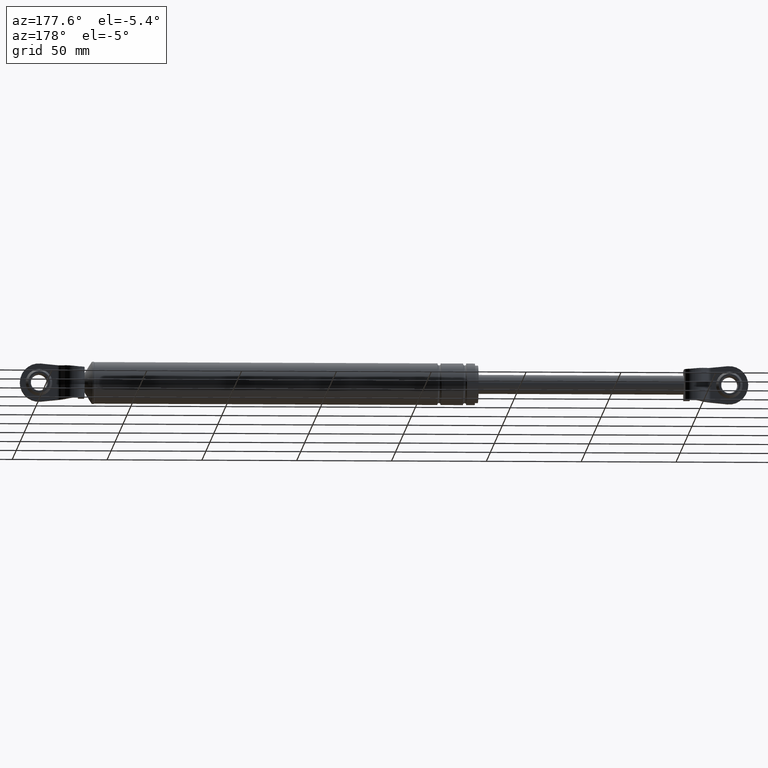
[diagram: clean part render]
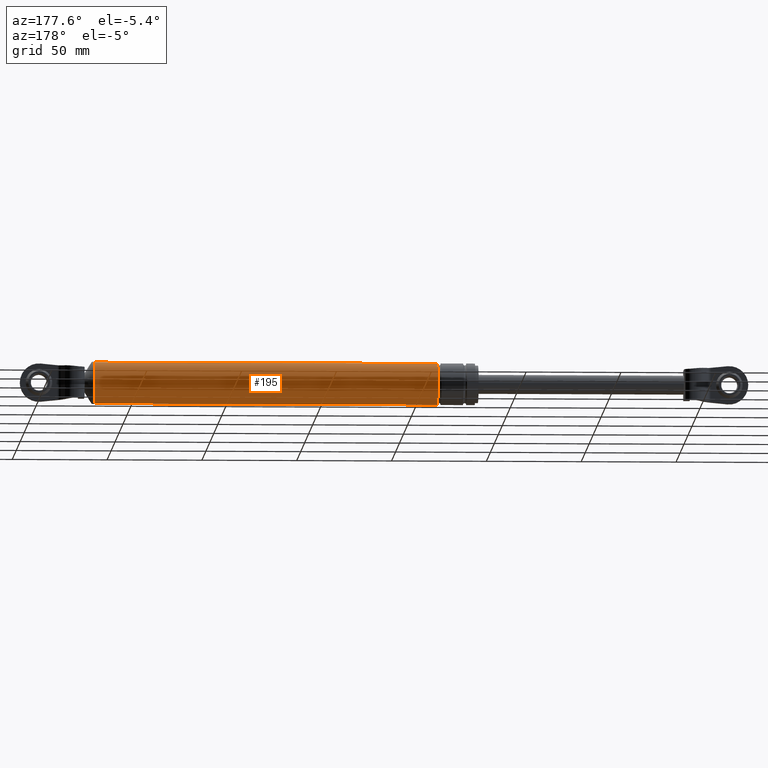
[diagram: same view with one face highlighted and labeled with its STEP entity id]
A machine part, auxiliary view. The second image highlights one B-rep face of the part: STEP entity #195.
In plain terms, the highlighted cylindrical surface (edge-blend (fillet) strip) has radius 11 mm, axis along (1, 0, 0).
Its self-contained STEP definition (entity closure, byte-faithful):
#195=ADVANCED_FACE('',(#1105),#1104,.T.);
#1104=CYLINDRICAL_SURFACE('',#2415,1.10000000000E+001);
#1105=FACE_OUTER_BOUND('',#2416,.T.);
#2412=CARTESIAN_POINT('',(0.00000000000E+000,0.00000000000E+000,1.93496945170E+002));
#2413=DIRECTION('',(1.00000000000E+000,-0.00000000000E+000,-0.00000000000E+000));
#2414=DIRECTION('',(-0.00000000000E+000,-0.00000000000E+000,-1.00000000000E+000));
#2415=AXIS2_PLACEMENT_3D('',#2412,#2413,#2414);
#2416=EDGE_LOOP('',(#3202,#3203,#3204,#3205));
#3202=ORIENTED_EDGE('',*,*,#3737,.T.);
#3203=ORIENTED_EDGE('',*,*,#3748,.F.);
#3204=ORIENTED_EDGE('',*,*,#3636,.F.);
#3205=ORIENTED_EDGE('',*,*,#3749,.T.);
#3636=EDGE_CURVE('',#4518,#4519,#4520,.T.);
#3737=EDGE_CURVE('',#5170,#5177,#5190,.T.);
#3748=EDGE_CURVE('',#4519,#5177,#5256,.T.);
#3749=EDGE_CURVE('',#4518,#5170,#5262,.T.);
#4518=VERTEX_POINT('',#6807);
#4519=VERTEX_POINT('',#6808);
#4520=CIRCLE('',#6812,1.10000000000E+001);
#5170=VERTEX_POINT('',#7192);
#5177=VERTEX_POINT('',#7195);
#5190=CIRCLE('',#7205,1.10000000000E+001);
#5256=(BOUNDED_CURVE() B_SPLINE_CURVE(1,(#7238,#7239),.UNSPECIFIED.,.F.,.F.) B_SPLINE_CURVE_WITH_KNOTS((2,2),(4.97526178137E-002,9.50247382111E-001),.UNSPECIFIED.) CURVE() GEOMETRIC_REPRESENTATION_ITEM() RATIONAL_B_SPLINE_CURVE((1.00000000000E+000,1.00000000000E+000)) REPRESENTATION_ITEM('') );
#5262=(BOUNDED_CURVE() B_SPLINE_CURVE(1,(#7240,#7241),.UNSPECIFIED.,.F.,.F.) B_SPLINE_CURVE_WITH_KNOTS((2,2),(4.97526179677E-002,9.50247382032E-001),.UNSPECIFIED.) CURVE() GEOMETRIC_REPRESENTATION_ITEM() RATIONAL_B_SPLINE_CURVE((7.50000000000E-001,7.50000000000E-001)) REPRESENTATION_ITEM('') );
#6807=CARTESIAN_POINT('',(1.86356691269E+002,0.00000000000E+000,2.04496945170E+002));
#6808=CARTESIAN_POINT('',(1.86356691269E+002,5.92118946467E-016,1.82496945170E+002));
#6809=CARTESIAN_POINT('',(1.86356691269E+002,0.00000000000E+000,1.93496945170E+002));
#6810=DIRECTION('',(-1.00000000000E+000,0.00000000000E+000,0.00000000000E+000));
#6811=DIRECTION('',(0.00000000000E+000,-1.22460635382E-016,1.00000000000E+000));
#6812=AXIS2_PLACEMENT_3D('',#6809,#6810,#6811);
#7192=CARTESIAN_POINT('',(3.67351139570E+002,0.00000000000E+000,2.04496945170E+002));
#7195=CARTESIAN_POINT('',(3.67351139570E+002,5.92118946467E-016,1.82496945170E+002));
#7202=CARTESIAN_POINT('',(3.67351139570E+002,0.00000000000E+000,1.93496945170E+002));
#7203=DIRECTION('',(-1.00000000000E+000,0.00000000000E+000,0.00000000000E+000));
#7204=DIRECTION('',(0.00000000000E+000,-1.22460635382E-016,1.00000000000E+000));
#7205=AXIS2_PLACEMENT_3D('',#7202,#7203,#7204);
#7238=CARTESIAN_POINT('',(1.86356691238E+002,0.00000000000E+000,1.82496945170E+002));
#7239=CARTESIAN_POINT('',(3.67351139586E+002,0.00000000000E+000,1.82496945170E+002));
#7240=CARTESIAN_POINT('',(1.86356691269E+002,0.00000000000E+000,2.04496945170E+002));
#7241=CARTESIAN_POINT('',(3.67351139570E+002,0.00000000000E+000,2.04496945170E+002));